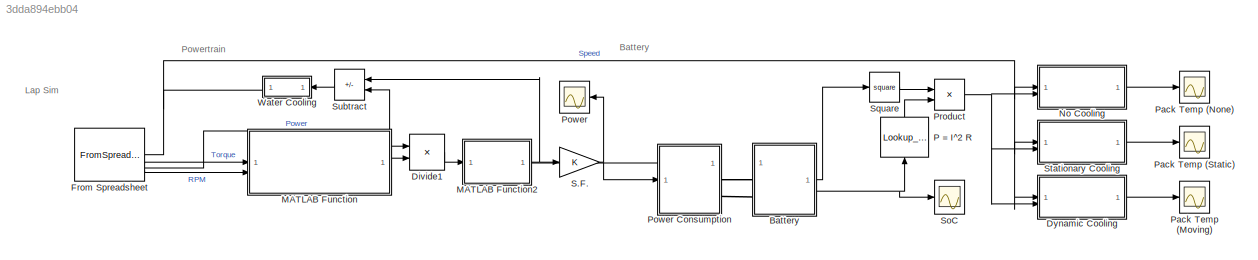
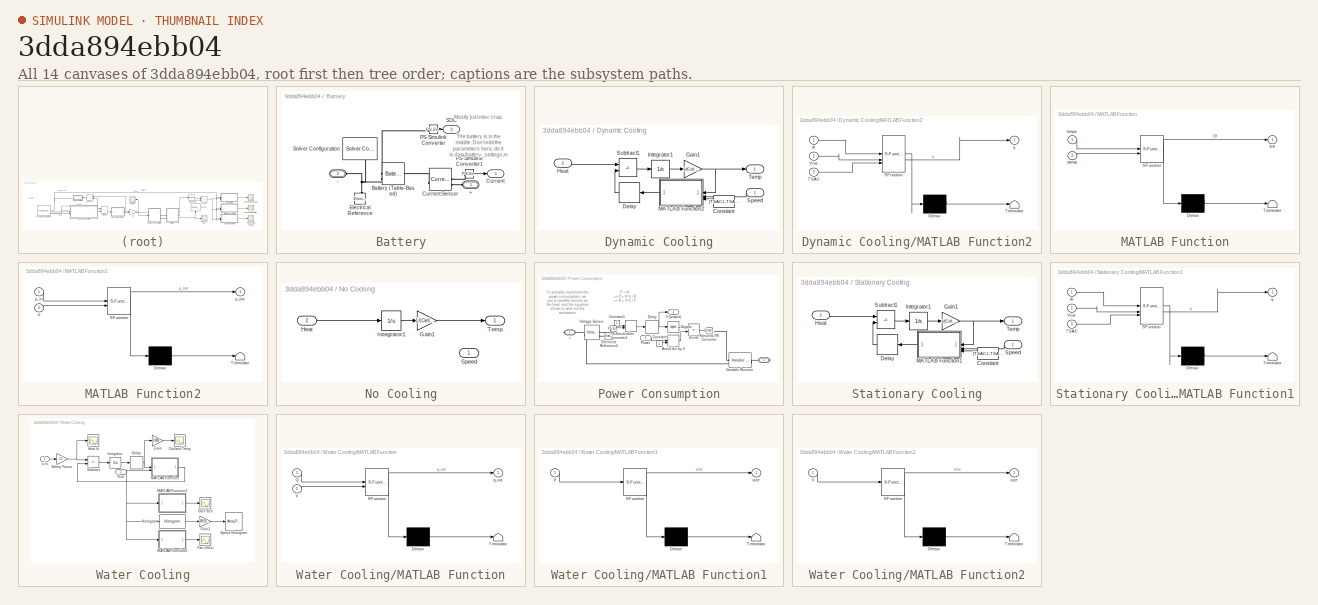
[diagram: thumbnail index - all 14 canvases of the model, root first then tree order]
MODEL slx_3dda894ebb04
KIND model
CONFIG AbsTol = auto
CONFIG EnableMultiTasking = off
CONFIG FixedStep = .02
CONFIG MaxStep = auto
CONFIG MinStep = auto
CONFIG RelTol = 1e-3
CONFIG SampleTimeConstraint = Unconstrained
CONFIG SolverName = FixedStepAuto
CONFIG StartTime = 0.0
CONFIG StopTime = runtime
WORKSPACE source: external: MATLAB File  (data not in archive)
BLOCK [SubSystem] Battery
BLOCK [PMIOPort] Battery/+
  Side = Left
BLOCK [PMIOPort] Battery/-
  Port = 2
  Side = Left
BLOCK [Reference] Battery/Battery (Table-Based)  REF=batteryecm_lib/Battery
(Table-Based)
  LibrarySourceBlock = batt_lib/Cells/Battery\n(Table-Based)
  NameLocation = top
  SourceBlock = batteryecm_lib/Battery\n(Table-Based)
  SourceType = Battery\n(Table-Based)
BLOCK [Outport] Battery/Current
BLOCK [Reference] Battery/Current Sensor  REF=fl_lib/Electrical/Electrical Sensors/Current Sensor
  NameLocation = top
  SourceBlock = fl_lib/Electrical/Electrical Sensors/Current Sensor
  SourceType = Current Sensor
BLOCK [Reference] Battery/Electrical Reference  REF=fl_lib/Electrical/Electrical Elements/Electrical Reference
  NameLocation = right
  SourceBlock = fl_lib/Electrical/Electrical Elements/Electrical Reference
  SourceType = Electrical Reference
BLOCK [Reference] Battery/PS-Simulink Converter  REF=nesl_utility/PS-Simulink
Converter
  SourceBlock = nesl_utility/PS-Simulink\nConverter
  SourceType = PS-Simulink\nConverter
BLOCK [Reference] Battery/PS-Simulink Converter1  REF=nesl_utility/PS-Simulink
Converter
  NameLocation = top
  SourceBlock = nesl_utility/PS-Simulink\nConverter
  SourceType = PS-Simulink\nConverter
BLOCK [Outport] Battery/SOC
  Port = 2
BLOCK [Reference] Battery/Solver Configuration  REF=nesl_utility/Solver
Configuration
  NameLocation = left
  SourceBlock = nesl_utility/Solver\nConfiguration
  SourceType = Solver\nConfiguration
BLOCK [Product] Divide1
  Inputs = */
  NameLocation = top
BLOCK [SubSystem] Dynamic Cooling
BLOCK [Constant] Dynamic Cooling/Constant
  Value = [TSAC.L TSAC.H TSAC.W]
BLOCK [Delay] Dynamic Cooling/Delay
  DelayLength = 1
  InputPortMap = u0
BLOCK [Gain] Dynamic Cooling/Gain1
  Gain = 1/(Cell.series * Cell.parallel * Cell.mass * Cell.SHC)
BLOCK [Inport] Dynamic Cooling/Heat
  Port = 2
BLOCK [Integrator] Dynamic Cooling/Integrator1
BLOCK [SubSystem] Dynamic Cooling/MATLAB Function2
  ErrorFcn = Stateflow.Translate.translate
  PermitHierarchicalResolution = ExplicitOnly
  SFBlockType = MATLAB Function
  TreatAsAtomicUnit = on
BLOCK [Demux] Dynamic Cooling/MATLAB Function2/ Demux 
  Outputs = 1
BLOCK [S-Function] Dynamic Cooling/MATLAB Function2/ SFunction 
  EnableBusSupport = on
  FunctionName = sf_sfun
  PortCounts = [3 2]
  SFcnIsStateOwnerBlock = off
  SFunctionDeploymentMode = off
  Tag = Stateflow S-Function 5
BLOCK [Terminator] Dynamic Cooling/MATLAB Function2/ Terminator 
BLOCK [Inport] Dynamic Cooling/MATLAB Function2/TSAC
  Port = 3
BLOCK [Inport] Dynamic Cooling/MATLAB Function2/Vcar
  Port = 2
BLOCK [Inport] Dynamic Cooling/MATLAB Function2/dt
BLOCK [Outport] Dynamic Cooling/MATLAB Function2/q
BLOCK [Inport] Dynamic Cooling/Speed
BLOCK [Sum] Dynamic Cooling/Subtract1
  IconShape = rectangular
  Inputs = +-
BLOCK [Outport] Dynamic Cooling/Temp
BLOCK [FromSpreadsheet] From Spreadsheet
  FileName = Lapsim.xlsx
  Range = E1:E5414, W1:Y5414
  SampleTime = 0.02
  TreatFirstColumnAs = Data
BLOCK [SubSystem] MATLAB Function
  ErrorFcn = Stateflow.Translate.translate
  PermitHierarchicalResolution = ExplicitOnly
  SFBlockType = MATLAB Function
  TreatAsAtomicUnit = on
BLOCK [Demux] MATLAB Function/ Demux 
  Outputs = 1
BLOCK [S-Function] MATLAB Function/ SFunction 
  EnableBusSupport = on
  FunctionName = sf_sfun
  PortCounts = [2 2]
  SFcnIsStateOwnerBlock = off
  SFunctionDeploymentMode = off
  Tag = Stateflow S-Function 2
BLOCK [Terminator] MATLAB Function/ Terminator 
BLOCK [Outport] MATLAB Function/Eff
BLOCK [Inport] MATLAB Function/RPM
  Port = 2
BLOCK [Inport] MATLAB Function/torque
BLOCK [SubSystem] MATLAB Function2
  ErrorFcn = Stateflow.Translate.translate
  PermitHierarchicalResolution = ExplicitOnly
  SFBlockType = MATLAB Function
  TreatAsAtomicUnit = on
BLOCK [Demux] MATLAB Function2/ Demux 
  Outputs = 1
BLOCK [S-Function] MATLAB Function2/ SFunction 
  EnableBusSupport = on
  FunctionName = sf_sfun
  PortCounts = [2 2]
  SFcnIsStateOwnerBlock = off
  SFunctionDeploymentMode = off
  Tag = Stateflow S-Function 4
BLOCK [Terminator] MATLAB Function2/ Terminator 
BLOCK [Inport] MATLAB Function2/V
  Port = 2
BLOCK [Inport] MATLAB Function2/p_in
BLOCK [Outport] MATLAB Function2/p_out
BLOCK [SubSystem] No Cooling
BLOCK [Gain] No Cooling/Gain1
  Gain = 1/(Cell.parallel * Cell.series * Cell.mass * Cell.SHC)
BLOCK [Inport] No Cooling/Heat
  Port = 2
BLOCK [Integrator] No Cooling/Integrator1
BLOCK [Inport] No Cooling/Speed
BLOCK [Outport] No Cooling/Temp
BLOCK [Lookup_n-D] P = I^2 R
  BreakpointsForDimension1 = Cell.SOC
  InputPortMap = u0
  InternalRulePriority = Speed
  NameLocation = left
  NumberOfTableDimensions = 1
  RndMeth = Simplest
  Table = zeros(1,length(Cell.SOC)) + (Cell.Resistance*Cell.series/Cell.parallel)
BLOCK [Scope] Pack Temp (Moving)
  Floating = off
  NumInputPorts = 1
  ScopeSpecificationString = Simulink.scopes.TimeScopeBlockCfg('CurrentConfiguration', extmgr.ConfigurationSet(extmgr.Configuration('Core','General UI',true),extmgr.Configuration('Core','Source UI',true),extmgr.Configuration('Sources','WiredSimulink',true,'DataLoggingVariableName','ScopeData1'),extmgr.Configuration('Visuals','Time Domain',true,'SerializedDisplays',{struct('MinYLimReal','-3.85093','MaxYLimReal','34.65839','YLa...<+1446ch>
BLOCK [Scope] Pack Temp (None)
  Floating = off
  NumInputPorts = 1
  ScopeSpecificationString = Simulink.scopes.TimeScopeBlockCfg('CurrentConfiguration', extmgr.ConfigurationSet(extmgr.Configuration('Core','General UI',true),extmgr.Configuration('Core','Source UI',true),extmgr.Configuration('Sources','WiredSimulink',true,'DataLoggingVariableName','ScopeData3'),extmgr.Configuration('Visuals','Time Domain',true,'SerializedDisplays',{struct('MinYLimReal','-5.04837','MaxYLimReal','45.43533','YLa...<+1442ch>
BLOCK [Scope] Pack Temp (Static)
  Floating = off
  NumInputPorts = 1
  ScopeSpecificationString = Simulink.scopes.TimeScopeBlockCfg('CurrentConfiguration', extmgr.ConfigurationSet(extmgr.Configuration('Core','General UI',true),extmgr.Configuration('Core','Source UI',true),extmgr.Configuration('Sources','WiredSimulink',true,'DataLoggingVariableName','ScopeData2'),extmgr.Configuration('Visuals','Time Domain',true,'SerializedDisplays',{struct('MinYLimReal','-4.56712','MaxYLimReal','41.10409','YLa...<+1569ch>
BLOCK [Scope] Power
  Floating = off
  NumInputPorts = 1
  ScopeSpecificationString = Simulink.scopes.TimeScopeBlockCfg('CurrentConfiguration', extmgr.ConfigurationSet(extmgr.Configuration('Core','General UI',true),extmgr.Configuration('Core','Source UI',true),extmgr.Configuration('Sources','WiredSimulink',true,'DataLoggingVariableName','ScopeData2'),extmgr.Configuration('Visuals','Time Domain',true,'SerializedDisplays',{struct('MinYLimReal','-8708.19251','MaxYLimReal','78670.55225...<+1458ch>
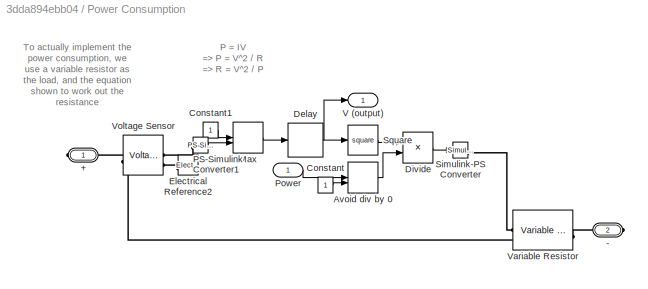
BLOCK [SubSystem] Power Consumption
  PortSchema = {"entries":[{"content":{"sides":[{"content":{"connectorIds":["In1","Out1"]},"type":"ConnectorPlacement.EquallySpacedRectSide","uuid":"bce31be9-9828-45d3-a0ec-acfed125f971"},{"content":{"connectorIds":["RConn1","RConn2"],"side":"RIGHT"},"type":"ConnectorPlacement.EquallySpacedRectSide","uuid":"688da906-5253-49d4-8895-2a1ab7d3d08f"},{"content":{"side":"TOP"},"type":"ConnectorPlacement.EquallySpacedR...<+240ch>
BLOCK [PMIOPort] Power Consumption/+
  Side = Right
BLOCK [PMIOPort] Power Consumption/-
  Port = 2
  Side = Right
BLOCK [MinMax] Power Consumption/Avoid div by 0
  Function = max
  Inputs = 2
BLOCK [Constant] Power Consumption/Constant
BLOCK [Constant] Power Consumption/Constant1
BLOCK [Delay] Power Consumption/Delay
  DelayLength = 1
  InitialCondition = 445.2
  InputPortMap = u0
BLOCK [Product] Power Consumption/Divide
  Inputs = */
BLOCK [Reference] Power Consumption/Electrical Reference2  REF=fl_lib/Electrical/Electrical Elements/Electrical Reference
  SourceBlock = fl_lib/Electrical/Electrical Elements/Electrical Reference
  SourceType = Electrical Reference
BLOCK [MinMax] Power Consumption/Max
  Function = max
  Inputs = 2
BLOCK [Reference] Power Consumption/PS-Simulink Converter1  REF=nesl_utility/PS-Simulink
Converter
  SourceBlock = nesl_utility/PS-Simulink\nConverter
  SourceType = PS-Simulink\nConverter
BLOCK [Inport] Power Consumption/Power
BLOCK [Reference] Power Consumption/Simulink-PS Converter  REF=nesl_utility/Simulink-PS
Converter
  SourceBlock = nesl_utility/Simulink-PS\nConverter
  SourceType = Simulink-PS\nConverter
BLOCK [Math] Power Consumption/Square
  Operator = square
BLOCK [Outport] Power Consumption/V (output)
BLOCK [Reference] Power Consumption/Variable Resistor  REF=fl_lib/Electrical/Electrical Elements/Variable Resistor
  SourceBlock = fl_lib/Electrical/Electrical Elements/Variable Resistor
  SourceType = Variable Resistor
BLOCK [Reference] Power Consumption/Voltage Sensor  REF=fl_lib/Electrical/Electrical Sensors/Voltage Sensor
  SourceBlock = fl_lib/Electrical/Electrical Sensors/Voltage Sensor
  SourceType = Voltage Sensor
BLOCK [Product] Product
BLOCK [Gain] S.F.
BLOCK [Scope] SoC
  Floating = off
  NumInputPorts = 1
  ScopeSpecificationString = Simulink.scopes.TimeScopeBlockCfg('CurrentConfiguration', extmgr.ConfigurationSet(extmgr.Configuration('Core','General UI',true),extmgr.Configuration('Core','Source UI',true),extmgr.Configuration('Sources','WiredSimulink',true,'DataLoggingVariableName','ScopeData2'),extmgr.Configuration('Visuals','Time Domain',true,'SerializedDisplays',{struct('MinYLimReal','0.11403','MaxYLimReal','1.09844','YLabe...<+1566ch>
BLOCK [Math] Square
  Operator = square
BLOCK [SubSystem] Stationary Cooling
BLOCK [Constant] Stationary Cooling/Constant
  Value = [TSAC.L TSAC.H TSAC.W]
BLOCK [Delay] Stationary Cooling/Delay
  DelayLength = 1
  InputPortMap = u0
BLOCK [Gain] Stationary Cooling/Gain1
  Gain = 1/(Cell.series * Cell.parallel * Cell.mass * Cell.SHC)
BLOCK [Inport] Stationary Cooling/Heat
  Port = 2
BLOCK [Integrator] Stationary Cooling/Integrator1
BLOCK [SubSystem] Stationary Cooling/MATLAB Function1
  ErrorFcn = Stateflow.Translate.translate
  PermitHierarchicalResolution = ExplicitOnly
  SFBlockType = MATLAB Function
  TreatAsAtomicUnit = on
BLOCK [Demux] Stationary Cooling/MATLAB Function1/ Demux 
  Outputs = 1
BLOCK [S-Function] Stationary Cooling/MATLAB Function1/ SFunction 
  EnableBusSupport = on
  FunctionName = sf_sfun
  PortCounts = [3 2]
  SFcnIsStateOwnerBlock = off
  SFunctionDeploymentMode = off
  Tag = Stateflow S-Function 6
BLOCK [Terminator] Stationary Cooling/MATLAB Function1/ Terminator 
BLOCK [Inport] Stationary Cooling/MATLAB Function1/TSAC
  Port = 3
BLOCK [Inport] Stationary Cooling/MATLAB Function1/Vcar
  Port = 2
BLOCK [Inport] Stationary Cooling/MATLAB Function1/dt
BLOCK [Outport] Stationary Cooling/MATLAB Function1/q
BLOCK [Inport] Stationary Cooling/Speed
BLOCK [Sum] Stationary Cooling/Subtract1
  IconShape = rectangular
  Inputs = +-
BLOCK [Outport] Stationary Cooling/Temp
BLOCK [Sum] Subtract
  IconShape = rectangular
  Inputs = +-
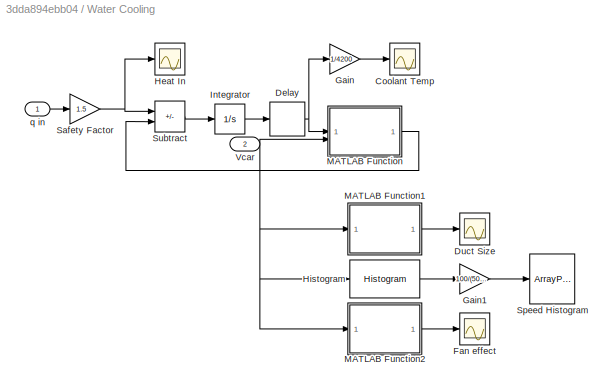
BLOCK [SubSystem] Water Cooling
  PortSchema = {"entries":[{"content":{"sides":[{"content":{"connectorIds":["In1"]},"type":"ConnectorPlacement.EquallySpacedRectSide","uuid":"7b584cd1-b16c-47c3-a77c-0f72b30f83a9"},{"content":{"connectorIds":["In2"],"side":"RIGHT"},"type":"ConnectorPlacement.EquallySpacedRectSide","uuid":"743ce824-323e-45dd-9a42-fd02d44e7a7c"},{"content":{"side":"TOP"},"type":"ConnectorPlacement.EquallySpacedRectSide","uuid":"ad...<+221ch>
BLOCK [Scope] Water Cooling/Coolant Temp
  Floating = off
  NumInputPorts = 1
  ScopeSpecificationString = Simulink.scopes.TimeScopeBlockCfg('CurrentConfiguration', extmgr.ConfigurationSet(extmgr.Configuration('Core','General UI',true),extmgr.Configuration('Core','Source UI',true),extmgr.Configuration('Sources','WiredSimulink',true,'DataLoggingVariableName','ScopeData1'),extmgr.Configuration('Visuals','Time Domain',true,'SerializedDisplays',{struct('MinYLimReal','16.35477','MaxYLimReal','52.80711','YLa...<+1398ch>
BLOCK [Delay] Water Cooling/Delay
  DelayLength = 1
  InitialCondition = 20*4200
  InputPortMap = u0
BLOCK [Scope] Water Cooling/Duct Size
  Floating = off
  NumInputPorts = 1
  ScopeSpecificationString = Simulink.scopes.TimeScopeBlockCfg('CurrentConfiguration', extmgr.ConfigurationSet(extmgr.Configuration('Core','General UI',true),extmgr.Configuration('Core','Source UI',true),extmgr.Configuration('Sources','WiredSimulink',true,'DataLoggingVariableName','ScopeData1'),extmgr.Configuration('Visuals','Time Domain',true,'SerializedDisplays',{struct('MinYLimReal','0.15318','MaxYLimReal','0.77185','YLabe...<+1442ch>
BLOCK [Scope] Water Cooling/Fan effect
  Floating = off
  NumInputPorts = 1
  ScopeSpecificationString = Simulink.scopes.TimeScopeBlockCfg('CurrentConfiguration', extmgr.ConfigurationSet(extmgr.Configuration('Core','General UI',true),extmgr.Configuration('Core','Source UI',true),extmgr.Configuration('Sources','WiredSimulink',true,'DataLoggingVariableName','ScopeData1'),extmgr.Configuration('Visuals','Time Domain',true,'SerializedDisplays',{struct('MinYLimReal','-0.37222','MaxYLimReal','2.16331','YLab...<+1445ch>
BLOCK [Gain] Water Cooling/Gain
  Gain = 1/4200
BLOCK [Gain] Water Cooling/Gain1
  Gain = 100/(50*runtime)
BLOCK [Scope] Water Cooling/Heat In
  Floating = off
  NumInputPorts = 1
  ScopeSpecificationString = Simulink.scopes.TimeScopeBlockCfg('CurrentConfiguration', extmgr.ConfigurationSet(extmgr.Configuration('Core','General UI',true),extmgr.Configuration('Core','Source UI',true),extmgr.Configuration('Sources','WiredSimulink',true,'DataLoggingVariableName','ScopeData1'),extmgr.Configuration('Visuals','Time Domain',true,'SerializedDisplays',{struct('MinYLimReal','-1796.0885','MaxYLimReal','16461.61621'...<+1465ch>
BLOCK [Reference] Water Cooling/Histogram  REF=dspstat3/Histogram
  SourceBlock = dspstat3/Histogram
  SourceType = Histogram
  UserDataPersistent = on
BLOCK [Integrator] Water Cooling/Integrator
  InitialCondition = 4200*20
BLOCK [SubSystem] Water Cooling/MATLAB Function
  ErrorFcn = Stateflow.Translate.translate
  PermitHierarchicalResolution = ExplicitOnly
  SFBlockType = MATLAB Function
  TreatAsAtomicUnit = on
BLOCK [Demux] Water Cooling/MATLAB Function/ Demux 
  Outputs = 1
BLOCK [S-Function] Water Cooling/MATLAB Function/ SFunction 
  EnableBusSupport = on
  FunctionName = sf_sfun
  PortCounts = [2 2]
  SFcnIsStateOwnerBlock = off
  SFunctionDeploymentMode = off
  Tag = Stateflow S-Function 3
BLOCK [Terminator] Water Cooling/MATLAB Function/ Terminator 
BLOCK [Inport] Water Cooling/MATLAB Function/Q
BLOCK [Inport] Water Cooling/MATLAB Function/V
  Port = 2
BLOCK [Outport] Water Cooling/MATLAB Function/q_out
BLOCK [SubSystem] Water Cooling/MATLAB Function1
  ErrorFcn = Stateflow.Translate.translate
  PermitHierarchicalResolution = ExplicitOnly
  SFBlockType = MATLAB Function
  TreatAsAtomicUnit = on
BLOCK [Demux] Water Cooling/MATLAB Function1/ Demux 
  Outputs = 1
BLOCK [S-Function] Water Cooling/MATLAB Function1/ SFunction 
  EnableBusSupport = on
  FunctionName = sf_sfun
  PortCounts = [1 2]
  SFcnIsStateOwnerBlock = off
  SFunctionDeploymentMode = off
  Tag = Stateflow S-Function 1
BLOCK [Terminator] Water Cooling/MATLAB Function1/ Terminator 
BLOCK [Inport] Water Cooling/MATLAB Function1/V
BLOCK [Outport] Water Cooling/MATLAB Function1/size
BLOCK [SubSystem] Water Cooling/MATLAB Function2
  ErrorFcn = Stateflow.Translate.translate
  PermitHierarchicalResolution = ExplicitOnly
  SFBlockType = MATLAB Function
  TreatAsAtomicUnit = on
BLOCK [Demux] Water Cooling/MATLAB Function2/ Demux 
  Outputs = 1
BLOCK [S-Function] Water Cooling/MATLAB Function2/ SFunction 
  EnableBusSupport = on
  FunctionName = sf_sfun
  PortCounts = [1 2]
  SFcnIsStateOwnerBlock = off
  SFunctionDeploymentMode = off
  Tag = Stateflow S-Function 7
BLOCK [Terminator] Water Cooling/MATLAB Function2/ Terminator 
BLOCK [Inport] Water Cooling/MATLAB Function2/V
BLOCK [Outport] Water Cooling/MATLAB Function2/size
BLOCK [Gain] Water Cooling/Safety Factor
  Gain = 1.5
BLOCK [ArrayPlot] Water Cooling/Speed Histogram
  Commented = on
  GraphicalSettings = {"Style":{"BackgroundColor":[0.12941176470588237,0.12941176470588237,0.12941176470588237],"AxesColor":[0.07058823529411765,0.07058823529411765,0.07058823529411765],"LabelsColor":[0.8509803921568627,0.8509803921568627,0.8509803921568627],"PreserveColors":false,"Visible":[true],"LineStyle":["-"],"LineColor":[[1,1,0.06666666666666667]],"LineWidth":[1.5],"Marker":["o"],"FontSize":"small"},"Cursors":{"...<+534ch>
  ScopeFrameLocation = window
  WasSavedAsWebScope = on
  WindowPosition = [196.000000,35.000000,800.000000,500.000000,]
  YLimits = [-0.125 1.125]
BLOCK [Sum] Water Cooling/Subtract
  IconShape = rectangular
  Inputs = +-
BLOCK [Inport] Water Cooling/Vcar
  Port = 2
BLOCK [Inport] Water Cooling/q in
ANNOTATION (root): Battery
ANNOTATION (root): Lap Sim
ANNOTATION (root): Powertrain
ANNOTATION Battery: Mostly just misc crap. The battery is in the middle. Don't edit the parameters here, do it in data/battery_settings.m
ANNOTATION Power Consumption: P = IV => P = V^2 / R => R = V^2 / P
ANNOTATION Power Consumption: To actually implement the power consumption, we use a variable resistor as the load, and the equation shown to work out the resistance
LINE Battery/PS-Simulink Converter1:1 -> Battery/Current:1
LINE Battery/PS-Simulink Converter:1 -> Battery/SOC:1
LINE Battery:1 -> Square:1
NET Battery:2 -> P = I^2 R:1, SoC:1
LINE Divide1:1 -> MATLAB Function2:1
LINE Dynamic Cooling/Constant:1 -> Dynamic Cooling/MATLAB Function2:3
LINE Dynamic Cooling/Delay:1 -> Dynamic Cooling/Subtract1:2
NET Dynamic Cooling/Gain1:1 -> Dynamic Cooling/MATLAB Function2:1, Dynamic Cooling/Temp:1
LINE Dynamic Cooling/Heat:1 -> Dynamic Cooling/Subtract1:1
LINE Dynamic Cooling/Integrator1:1 -> Dynamic Cooling/Gain1:1
LINE Dynamic Cooling/MATLAB Function2:1 -> Dynamic Cooling/Delay:1
LINE Dynamic Cooling/Speed:1 -> Dynamic Cooling/MATLAB Function2:2
LINE Dynamic Cooling/Subtract1:1 -> Dynamic Cooling/Integrator1:1
LINE Dynamic Cooling:1 -> Pack Temp (Moving):1
NET From Spreadsheet:1 -> Dynamic Cooling:1, No Cooling:1, Stationary Cooling:1, Water Cooling:2
LINE From Spreadsheet:2 -> MATLAB Function:1
NET From Spreadsheet:3 -> Divide1:1, Subtract:2
LINE From Spreadsheet:4 -> MATLAB Function:2
NET MATLAB Function2:1 -> S.F.:1, Subtract:1
LINE MATLAB Function:1 -> Divide1:2
LINE No Cooling/Gain1:1 -> No Cooling/Temp:1
LINE No Cooling/Heat:1 -> No Cooling/Integrator1:1
LINE No Cooling/Integrator1:1 -> No Cooling/Gain1:1
LINE No Cooling:1 -> Pack Temp (None):1
LINE P = I^2 R:1 -> Product:2
LINE Power Consumption/Avoid div by 0:1 -> Power Consumption/Divide:2
LINE Power Consumption/Constant1:1 -> Power Consumption/Max:1
LINE Power Consumption/Constant:1 -> Power Consumption/Avoid div by 0:2
NET Power Consumption/Delay:1 -> Power Consumption/Square:1, Power Consumption/V (output):1
LINE Power Consumption/Divide:1 -> Power Consumption/Simulink-PS Converter:1
LINE Power Consumption/Max:1 -> Power Consumption/Delay:1
LINE Power Consumption/PS-Simulink Converter1:1 -> Power Consumption/Max:2
LINE Power Consumption/Power:1 -> Power Consumption/Avoid div by 0:1
LINE Power Consumption/Square:1 -> Power Consumption/Divide:1
LINE Power Consumption:1 -> MATLAB Function2:2
NET Product:1 -> Dynamic Cooling:2, No Cooling:2, Stationary Cooling:2
NET S.F.:1 -> Power Consumption:1, Power:1
LINE Square:1 -> Product:1
LINE Stationary Cooling/Constant:1 -> Stationary Cooling/MATLAB Function1:3
LINE Stationary Cooling/Delay:1 -> Stationary Cooling/Subtract1:2
NET Stationary Cooling/Gain1:1 -> Stationary Cooling/MATLAB Function1:1, Stationary Cooling/Temp:1
LINE Stationary Cooling/Heat:1 -> Stationary Cooling/Subtract1:1
LINE Stationary Cooling/Integrator1:1 -> Stationary Cooling/Gain1:1
LINE Stationary Cooling/MATLAB Function1:1 -> Stationary Cooling/Delay:1
LINE Stationary Cooling/Speed:1 -> Stationary Cooling/MATLAB Function1:2
LINE Stationary Cooling/Subtract1:1 -> Stationary Cooling/Integrator1:1
LINE Stationary Cooling:1 -> Pack Temp (Static):1
LINE Subtract:1 -> Water Cooling:1
NET Water Cooling/Delay:1 -> Water Cooling/Gain:1, Water Cooling/MATLAB Function:1
LINE Water Cooling/Gain1:1 -> Water Cooling/Speed Histogram:1
LINE Water Cooling/Gain:1 -> Water Cooling/Coolant Temp:1
LINE Water Cooling/Histogram:1 -> Water Cooling/Gain1:1
LINE Water Cooling/Integrator:1 -> Water Cooling/Delay:1
LINE Water Cooling/MATLAB Function1:1 -> Water Cooling/Duct Size:1
LINE Water Cooling/MATLAB Function2:1 -> Water Cooling/Fan effect:1
LINE Water Cooling/MATLAB Function:1 -> Water Cooling/Subtract:2
NET Water Cooling/Safety Factor:1 -> Water Cooling/Heat In:1, Water Cooling/Subtract:1
LINE Water Cooling/Subtract:1 -> Water Cooling/Integrator:1
NET Water Cooling/Vcar:1 -> Water Cooling/Histogram:1, Water Cooling/MATLAB Function1:1, Water Cooling/MATLAB Function2:1, Water Cooling/MATLAB Function:2
LINE Water Cooling/q in:1 -> Water Cooling/Safety Factor:1
PLINE Battery/+:RConn1 -- Battery/Current Sensor:RConn2
PNET net1: Battery/-:RConn1 -- Battery/Battery (Table-Based):RConn1 -- Battery/Electrical Reference:LConn1 -- Battery/Solver Configuration:RConn1
PLINE Battery/Battery (Table-Based):LConn1 -- Battery/Current Sensor:LConn1
PLINE Battery/Battery (Table-Based):LConn2 -- Battery/PS-Simulink Converter:LConn1
PLINE Battery/Current Sensor:RConn1 -- Battery/PS-Simulink Converter1:LConn1
PLINE Battery:LConn1 -- Power Consumption:RConn1
PLINE Battery:LConn2 -- Power Consumption:RConn2
PNET net2: Power Consumption/+:RConn1 -- Power Consumption/Variable Resistor:LConn2 -- Power Consumption/Voltage Sensor:LConn1
PLINE Power Consumption/-:RConn1 -- Power Consumption/Variable Resistor:RConn1
PLINE Power Consumption/Electrical Reference2:LConn1 -- Power Consumption/Voltage Sensor:RConn2
PLINE Power Consumption/PS-Simulink Converter1:LConn1 -- Power Consumption/Voltage Sensor:RConn1
PLINE Power Consumption/Simulink-PS Converter:RConn1 -- Power Consumption/Variable Resistor:LConn1
note: NET lines group one-source signal fan-out (src -> all destinations, sorted); 1:1 wires keep LINE; PNET lines group multi-terminal physical nets as a canonical sorted terminal list (undirected conserving connections); 2-terminal nets keep the pairwise PLINE form
CHART Water Cooling/MATLAB Function1 states=1 transitions=1
  STATE_LABEL 'eML_blk_kernel()'
  STATE_LABEL 'SCRIPT:\nfunction size = fcn(V)\nstate = Radiator_settings;\nstate.V_car = V;\nsize = Airflow(state)/(state.radiator.H*state.radiator.L*V);\n'
CHART MATLAB Function states=1 transitions=1
  STATE_LABEL 'eML_blk_kernel()'
  STATE_LABEL 'SCRIPT:\nfunction Eff = MotorEfficiency(torque, RPM)\n    % Emrax 208. If you ever change motor, use PyOpenCV and numpy/MATLAB\n    % polyfit to make something like this for the new one, using the\n    % efficiency contour from the datasheet (if there is one). This should \n    % return a value in [0,1] \n    p00 =       85.36;\n    p10 =   -0.004406;\n    p01 =     -0.2588;\n    p20 =   3.797e-06;\n    p11...<+798ch>'
CHART Water Cooling/MATLAB Function states=1 transitions=1
  STATE_LABEL 'eML_blk_kernel()'
  STATE_LABEL 'SCRIPT:\nfunction q_out = fcn(Q, V)\n\nq_out = Rate(Q/4200, V);\n'
CHART MATLAB Function2 states=1 transitions=1
  STATE_LABEL 'eML_blk_kernel()'
  STATE_LABEL "SCRIPT:\nfunction p_out = Inverter(p_in, V)\n\n% Inverter inefficiency is tabulated vs V and I, so we implement that here\n\np_out = p_in + interp2([50 100 150 200 250 300 350], [200 400 600 800], ...\n    [129 261 402 552 717 894 1083; ...\n     201 384 579 783 999 1233 1479; ...\n     270 513 759 1020 1290 1584 1899; ...\n     342 642 945 1260 1596 1956 2343], ...\n     p_in/V, V, 'spline');"
CHART Dynamic Cooling/MATLAB Function2 states=1 transitions=1
  STATE_LABEL 'eML_blk_kernel()'
  STATE_LABEL 'SCRIPT:\nfunction q = Cooling(dt, Vcar, TSAC)\n\nfunction G = Gr(dt, L) % Grashof Number\n    G = (9.81*(1/(293.15+dt))*dt*L^3)/(15.69e-6)^2;\nend\nPr = 0.71; % Prandtl Number\nk = .026;  % Conductivity of air\n\n% Basic TSAC Dimensions\nL = TSAC(1);\nH = TSAC(2);\nW = TSAC(3);\n\n% Area of each face of the TSAC\nA_t = L*W;\nA_s3 = 2*W*H;\nA_s6 = 2*L*H;\nA_b = L*W;\n\n% Hydraulic Radii\nr_t  = A_t  / (2*(L+W));\nr_s3 =...<+818ch>'
CHART Stationary Cooling/MATLAB Function1 states=1 transitions=1
  STATE_LABEL 'eML_blk_kernel()'
  STATE_LABEL 'SCRIPT:\nfunction q = Cooling(dt, Vcar, TSAC)\n\nfunction G = Gr(dt, L) % Grashof Number\n    G = (9.81*(1/(293.15+dt))*dt*L^3)/(15.69e-6)^2;\nend\nPr = 0.71; % Prandtl Number\nk = .026;  % Conductivity of air\n\n% Basic TSAC Dimensions\nL = TSAC(1);\nH = TSAC(2);\nW = TSAC(3);\n\n% Area of each face of the TSAC\nA_t = L*W;\nA_s3 = 2*W*H;\nA_s6 = 2*L*H;\nA_b = L*W;\n\n% Hydraulic Radii\nr_t  = A_t  / (2*(L+W));\nr_s3 =...<+483ch>'
CHART Water Cooling/MATLAB Function2 states=1 transitions=1
  STATE_LABEL 'eML_blk_kernel()'
  STATE_LABEL 'SCRIPT:\nfunction size = fcn(V)\nstate = Radiator_settings;\nstate.V_car = V;\nsize = Airflow(state)/(state.radiator.H*state.radiator.L*V);\n\nsize = size/.244 - 1;'
CHART  states=0 transitions=0
CHART  states=0 transitions=0
CHART  states=0 transitions=0
CHART  states=0 transitions=0
CHART  states=0 transitions=0
CHART  states=0 transitions=0
CHART  states=0 transitions=0
